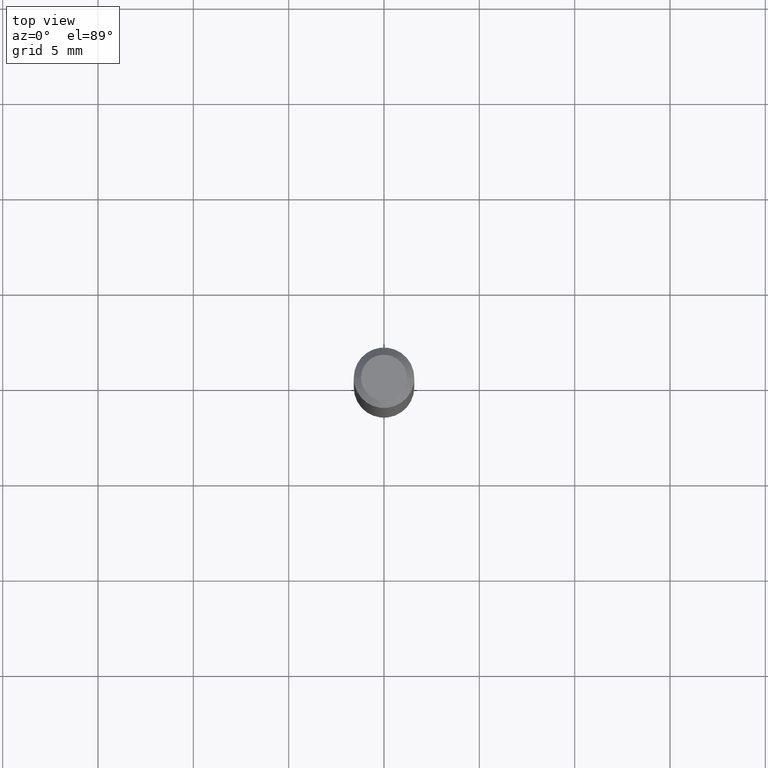
[diagram: clean part render]
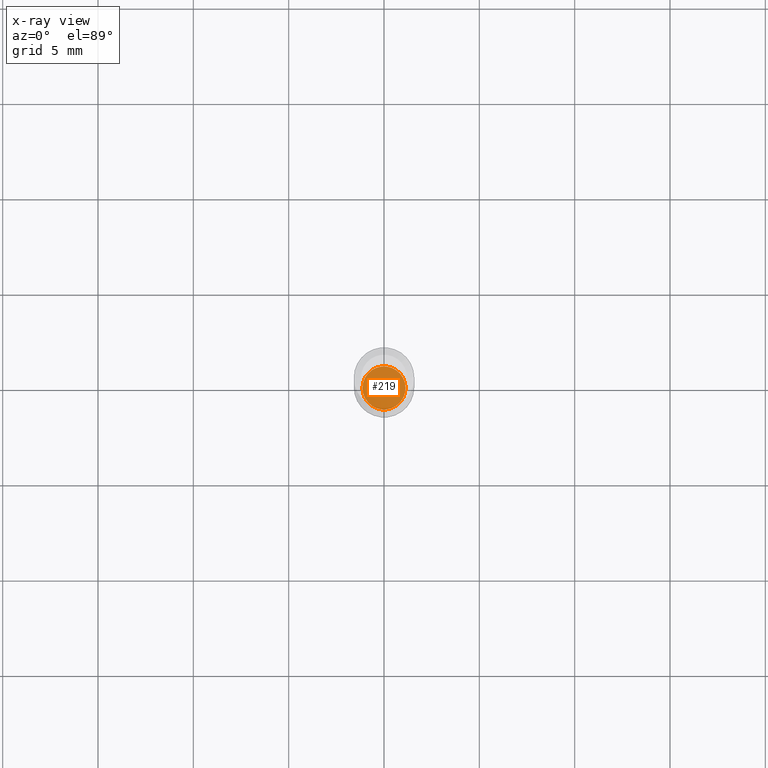
[diagram: x-ray — body ghosted, one internal face saturated and labeled with its STEP entity id]
A machine part, top view, then the same camera in x-ray: the body is ghosted and one INTERNAL B-rep face — a face not visible from any outside direction — is saturated and labeled: STEP entity #219.
In plain terms, the highlighted planar face has unit normal (-0, 0, 1).
Its self-contained STEP definition (entity closure, byte-faithful):
#26 = CARTESIAN_POINT ( 'NONE',  ( -0.04449999999999994238, -3.975681302189714292E-15, -1.230000000000000204 ) ) ;
#37 = CARTESIAN_POINT ( 'NONE',  ( 0.04449999999999994238, -4.605263885934107852E-15, -1.230000000000000204 ) ) ;
#55 = CARTESIAN_POINT ( 'NONE',  ( 3.007926631607718216E-29, -4.294522046777069173E-15, -1.230000000000000204 ) ) ;
#58 = CIRCLE ( 'NONE', #409, 0.04449999999999994238 ) ;
#100 = DIRECTION ( 'NONE',  ( -2.438088387897960049E-29, 3.491481338843145188E-15, 1.000000000000000000 ) ) ;
#124 = VERTEX_POINT ( 'NONE', #26 ) ;
#127 = CARTESIAN_POINT ( 'NONE',  ( 3.007926631607718216E-29, -4.294522046777069173E-15, -1.230000000000000204 ) ) ;
#143 = EDGE_CURVE ( 'NONE', #393, #124, #210, .T. ) ;
#148 = DIRECTION ( 'NONE',  ( 1.000000000000000000, -6.982962677686265922E-15, 4.876176775795935793E-29 ) ) ;
#186 = ORIENTED_EDGE ( 'NONE', *, *, #396, .F. ) ;
#191 = EDGE_LOOP ( 'NONE', ( #516, #186 ) ) ;
#210 = CIRCLE ( 'NONE', #505, 0.04449999999999994238 ) ;
#211 = AXIS2_PLACEMENT_3D ( 'NONE', #55, #100, #148 ) ;
#219 = ADVANCED_FACE ( 'NONE', ( #459 ), #506, .F. ) ;
#279 = DIRECTION ( 'NONE',  ( 1.000000000000000000, -6.982962677686265922E-15, 0.000000000000000000 ) ) ;
#300 = DIRECTION ( 'NONE',  ( 1.000000000000000000, -6.982962677686265922E-15, 0.000000000000000000 ) ) ;
#305 = DIRECTION ( 'NONE',  ( -2.445468806185136597E-29, 3.491481338843145583E-15, 1.000000000000000000 ) ) ;
#393 = VERTEX_POINT ( 'NONE', #37 ) ;
#396 = EDGE_CURVE ( 'NONE', #124, #393, #58, .T. ) ;
#409 = AXIS2_PLACEMENT_3D ( 'NONE', #127, #440, #279 ) ;
#440 = DIRECTION ( 'NONE',  ( -2.445468806185136597E-29, 3.491481338843145583E-15, 1.000000000000000000 ) ) ;
#459 = FACE_OUTER_BOUND ( 'NONE', #191, .T. ) ;
#501 = CARTESIAN_POINT ( 'NONE',  ( 3.007926631607718216E-29, -4.294522046777069173E-15, -1.230000000000000204 ) ) ;
#505 = AXIS2_PLACEMENT_3D ( 'NONE', #501, #305, #300 ) ;
#506 = PLANE ( 'NONE',  #211 ) ;
#516 = ORIENTED_EDGE ( 'NONE', *, *, #143, .F. ) ;